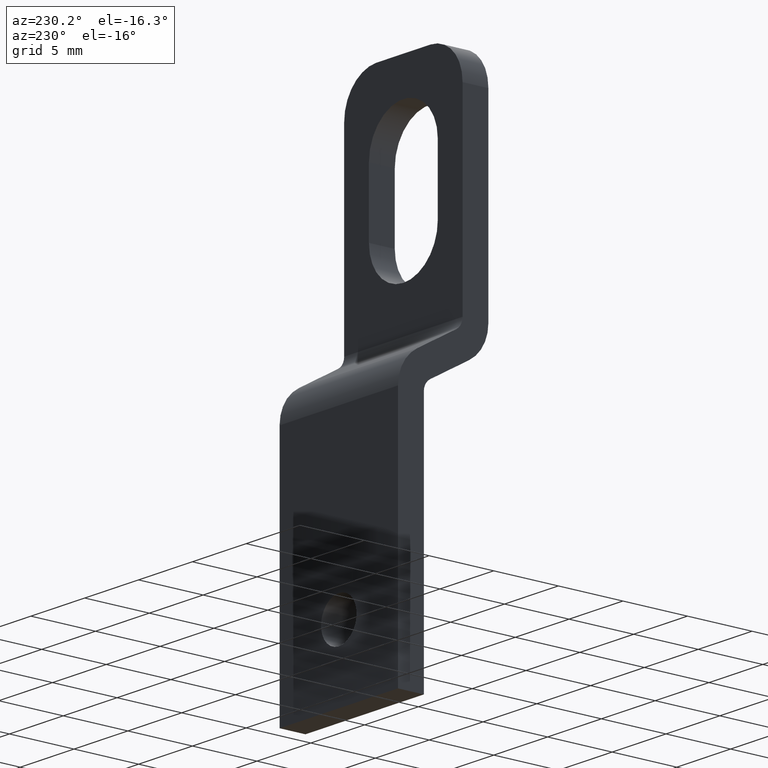
[diagram: clean part render]
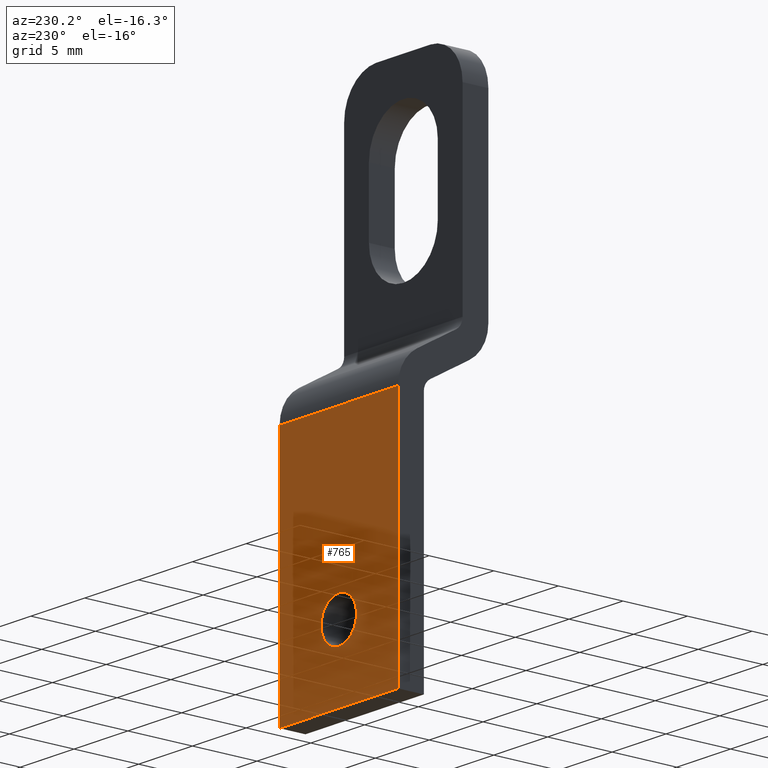
[diagram: same view with one face highlighted and labeled with its STEP entity id]
A machine part, auxiliary view. The second image highlights one B-rep face of the part: STEP entity #765.
In plain terms, the highlighted planar face has unit normal (0, -1, 0).
Its self-contained STEP definition (entity closure, byte-faithful):
#68 = DIRECTION ( 'NONE',  ( 0.0000000000000000000, 0.0000000000000000000, -1.000000000000000000 ) ) ;
#69 = DIRECTION ( 'NONE',  ( -0.0000000000000000000, 1.000000000000000000, -9.242000404777876400E-017 ) ) ;
#70 = CARTESIAN_POINT ( 'NONE',  ( 0.0000000000000000000, 7.000000000000004400, 0.0000000000000000000 ) ) ;
#71 = AXIS2_PLACEMENT_3D ( 'NONE', #70, #69, #68 ) ;
#72 = CIRCLE ( 'NONE', #71, 1.650000000000000100 ) ;
#124 = DIRECTION ( 'NONE',  ( -0.0000000000000000000, 9.242000404777875100E-017, 1.000000000000000000 ) ) ;
#125 = VECTOR ( 'NONE', #124, 1000.000000000000000 ) ;
#126 = CARTESIAN_POINT ( 'NONE',  ( -5.500000000000000000, 7.000000000000005300, 13.26999999999999800 ) ) ;
#132 = LINE ( 'NONE', #126, #125 ) ;
#171 = CARTESIAN_POINT ( 'NONE',  ( -5.500000000000000000, 7.000000000000005300, 13.26999999999999800 ) ) ;
#172 = CARTESIAN_POINT ( 'NONE',  ( -5.500000000000000000, 7.000000000000003600, -5.500000000000001800 ) ) ;
#173 = CARTESIAN_POINT ( 'NONE',  ( 5.500000000000000000, 7.000000000000005300, 13.26999999999999800 ) ) ;
#174 = DIRECTION ( 'NONE',  ( -1.000000000000000000, -0.0000000000000000000, -0.0000000000000000000 ) ) ;
#175 = VECTOR ( 'NONE', #174, 1000.000000000000000 ) ;
#176 = CARTESIAN_POINT ( 'NONE',  ( 5.500000000000000000, 7.000000000000005300, 13.26999999999999800 ) ) ;
#177 = LINE ( 'NONE', #176, #175 ) ;
#217 = CARTESIAN_POINT ( 'NONE',  ( 5.500000000000000000, 7.000000000000003600, -5.500000000000001800 ) ) ;
#220 = DIRECTION ( 'NONE',  ( -0.0000000000000000000, 9.242000404777875100E-017, 1.000000000000000000 ) ) ;
#221 = VECTOR ( 'NONE', #220, 1000.000000000000000 ) ;
#222 = CARTESIAN_POINT ( 'NONE',  ( 5.500000000000000000, 7.000000000000005300, 13.26999999999999800 ) ) ;
#223 = LINE ( 'NONE', #222, #221 ) ;
#241 = DIRECTION ( 'NONE',  ( 0.0000000000000000000, 0.0000000000000000000, -1.000000000000000000 ) ) ;
#242 = DIRECTION ( 'NONE',  ( -0.0000000000000000000, 1.000000000000000000, -9.242000404777876400E-017 ) ) ;
#243 = CARTESIAN_POINT ( 'NONE',  ( 0.0000000000000000000, 7.000000000000004400, 0.0000000000000000000 ) ) ;
#244 = AXIS2_PLACEMENT_3D ( 'NONE', #243, #242, #241 ) ;
#245 = CIRCLE ( 'NONE', #244, 1.650000000000000100 ) ;
#274 = DIRECTION ( 'NONE',  ( -1.000000000000000000, -0.0000000000000000000, -0.0000000000000000000 ) ) ;
#275 = VECTOR ( 'NONE', #274, 1000.000000000000000 ) ;
#276 = CARTESIAN_POINT ( 'NONE',  ( 5.500000000000000000, 7.000000000000003600, -5.500000000000001800 ) ) ;
#277 = LINE ( 'NONE', #276, #275 ) ;
#302 = DIRECTION ( 'NONE',  ( 0.0000000000000000000, -9.242000404777876400E-017, -1.000000000000000000 ) ) ;
#303 = DIRECTION ( 'NONE',  ( 0.0000000000000000000, -1.000000000000000000, 9.242000404777876400E-017 ) ) ;
#304 = CARTESIAN_POINT ( 'NONE',  ( 5.500000000000000000, 7.000000000000005300, 13.26999999999999800 ) ) ;
#305 = AXIS2_PLACEMENT_3D ( 'NONE', #304, #303, #302 ) ;
#306 = PLANE ( 'NONE',  #305 ) ;
#307 = FACE_BOUND ( 'NONE', #727, .T. ) ;
#308 = FACE_OUTER_BOUND ( 'NONE', #761, .T. ) ;
#610 = VERTEX_POINT ( 'NONE', #959 ) ;
#611 = VERTEX_POINT ( 'NONE', #958 ) ;
#646 = ORIENTED_EDGE ( 'NONE', *, *, #740, .F. ) ;
#664 = EDGE_CURVE ( 'NONE', #610, #611, #72, .T. ) ;
#683 = ORIENTED_EDGE ( 'NONE', *, *, #684, .T. ) ;
#684 = EDGE_CURVE ( 'NONE', #694, #695, #132, .T. ) ;
#692 = EDGE_CURVE ( 'NONE', #693, #695, #177, .T. ) ;
#693 = VERTEX_POINT ( 'NONE', #173 ) ;
#694 = VERTEX_POINT ( 'NONE', #172 ) ;
#695 = VERTEX_POINT ( 'NONE', #171 ) ;
#696 = ORIENTED_EDGE ( 'NONE', *, *, #692, .F. ) ;
#727 = EDGE_LOOP ( 'NONE', ( #732, #733 ) ) ;
#728 = EDGE_CURVE ( 'NONE', #611, #610, #245, .T. ) ;
#732 = ORIENTED_EDGE ( 'NONE', *, *, #664, .F. ) ;
#733 = ORIENTED_EDGE ( 'NONE', *, *, #728, .F. ) ;
#734 = ORIENTED_EDGE ( 'NONE', *, *, #748, .T. ) ;
#740 = EDGE_CURVE ( 'NONE', #741, #693, #223, .T. ) ;
#741 = VERTEX_POINT ( 'NONE', #217 ) ;
#748 = EDGE_CURVE ( 'NONE', #741, #694, #277, .T. ) ;
#761 = EDGE_LOOP ( 'NONE', ( #683, #696, #646, #734 ) ) ;
#765 = ADVANCED_FACE ( 'NONE', ( #308, #307 ), #306, .F. ) ;
#958 = CARTESIAN_POINT ( 'NONE',  ( 2.020600483806922700E-016, 7.000000000000004400, 1.650000000000000100 ) ) ;
#959 = CARTESIAN_POINT ( 'NONE',  ( 0.0000000000000000000, 7.000000000000004400, -1.650000000000000100 ) ) ;